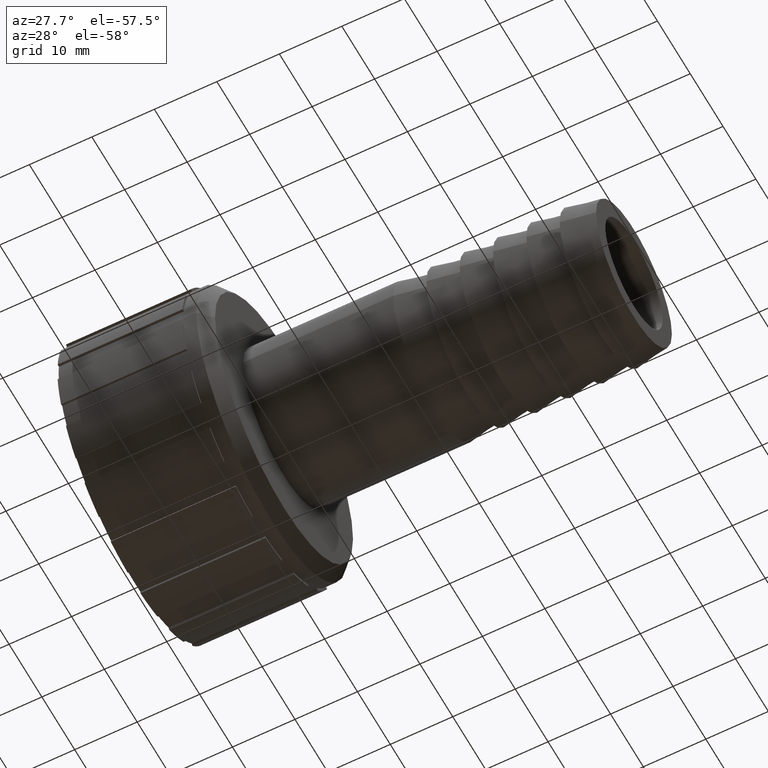
[diagram: clean part render]
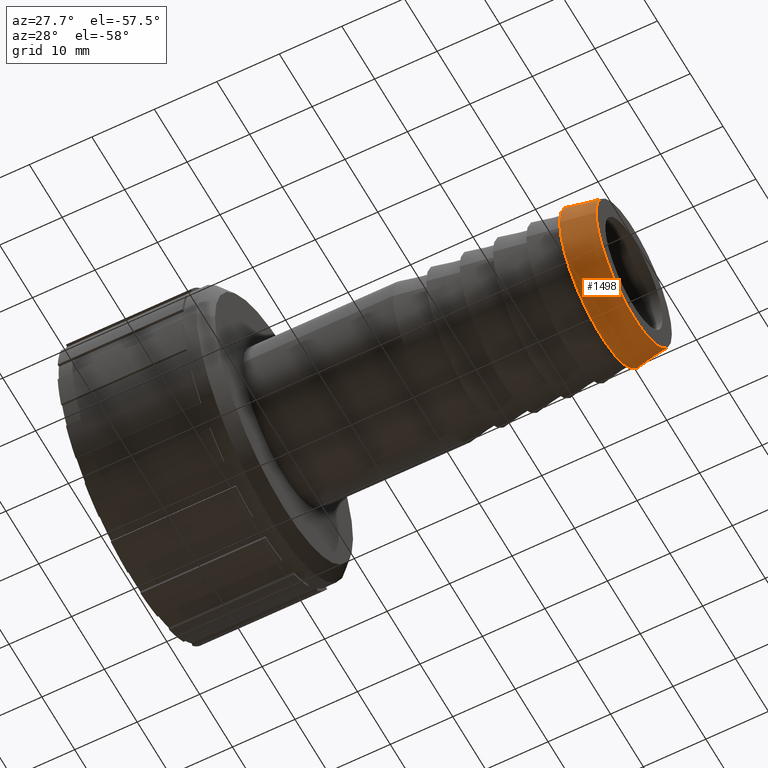
[diagram: same view with one face highlighted and labeled with its STEP entity id]
A machine part, auxiliary view. The second image highlights one B-rep face of the part: STEP entity #1498.
In plain terms, the highlighted conical surface has half-angle 10 deg.
Its self-contained STEP definition (entity closure, byte-faithful):
#16=CONICAL_SURFACE('',#1656,12.0297947181108,9.99999999999998);
#50=FACE_BOUND('',#310,.T.);
#133=CIRCLE('',#1655,11.5595894362215);
#134=CIRCLE('',#1657,12.5);
#217=FACE_OUTER_BOUND('',#309,.T.);
#309=EDGE_LOOP('',(#1345));
#310=EDGE_LOOP('',(#1346));
#724=VERTEX_POINT('',#2550);
#725=VERTEX_POINT('',#2553);
#935=EDGE_CURVE('',#724,#724,#133,.T.);
#936=EDGE_CURVE('',#725,#725,#134,.T.);
#1345=ORIENTED_EDGE('',*,*,#935,.T.);
#1346=ORIENTED_EDGE('',*,*,#936,.F.);
#1498=ADVANCED_FACE('',(#217,#50),#16,.T.);
#1655=AXIS2_PLACEMENT_3D('',#2551,#2095,#2096);
#1656=AXIS2_PLACEMENT_3D('',#2552,#2097,#2098);
#1657=AXIS2_PLACEMENT_3D('',#2554,#2099,#2100);
#2095=DIRECTION('center_axis',(-1.,0.,0.));
#2096=DIRECTION('ref_axis',(0.,0.,1.));
#2097=DIRECTION('center_axis',(-1.,0.,0.));
#2098=DIRECTION('ref_axis',(0.,-1.,0.));
#2099=DIRECTION('center_axis',(-1.,0.,0.));
#2100=DIRECTION('ref_axis',(0.,0.,1.));
#2550=CARTESIAN_POINT('',(80.,-11.5595894362215,0.));
#2551=CARTESIAN_POINT('Origin',(80.,0.,0.));
#2552=CARTESIAN_POINT('Origin',(77.3333333333333,0.,0.));
#2553=CARTESIAN_POINT('',(74.6666666666667,-12.5,0.));
#2554=CARTESIAN_POINT('Origin',(74.6666666666667,0.,0.));